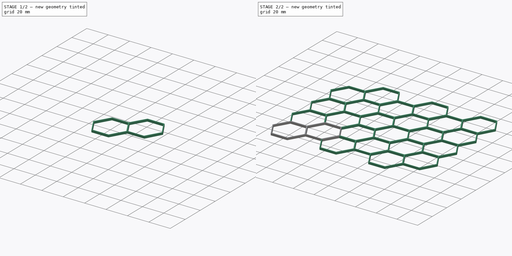
[diagram: build sequence overview — one tinted view per stage of 2, left to right]
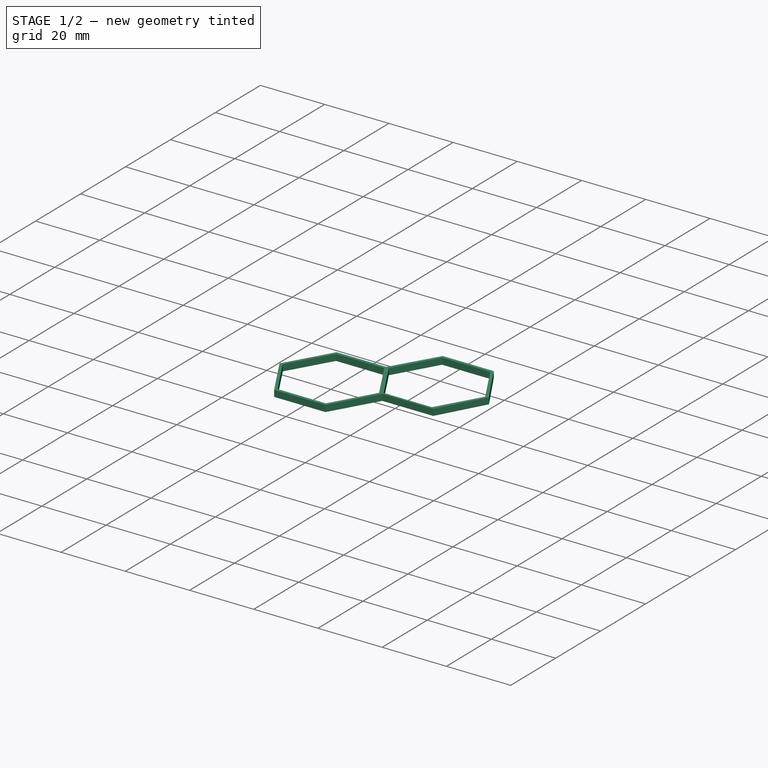
[diagram: stage 1 of 2 — iso view after this stage's code; geometry added in this stage tinted green]
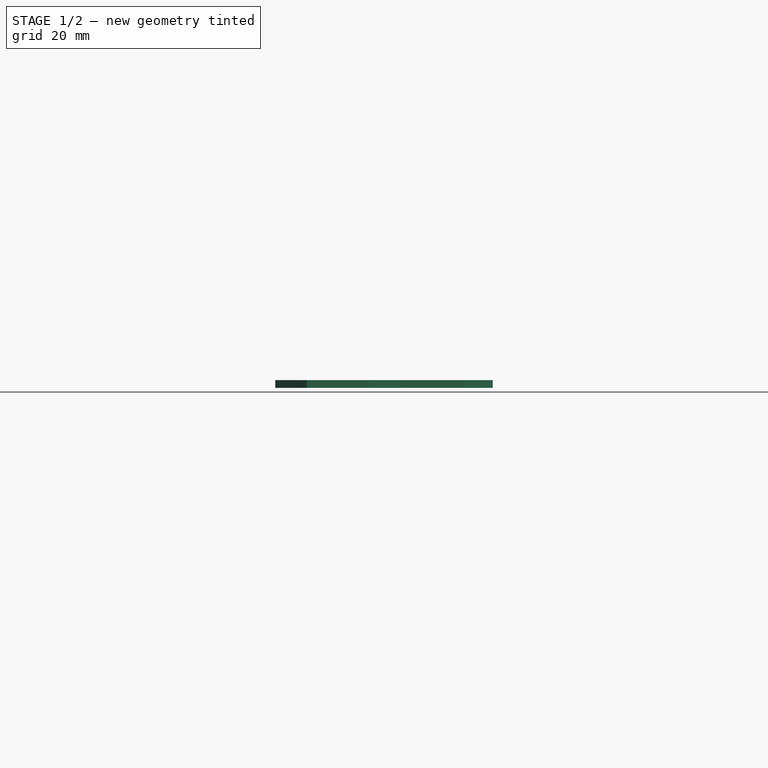
[diagram: stage 1 of 2 — front view after this stage's code; geometry added in this stage tinted green]
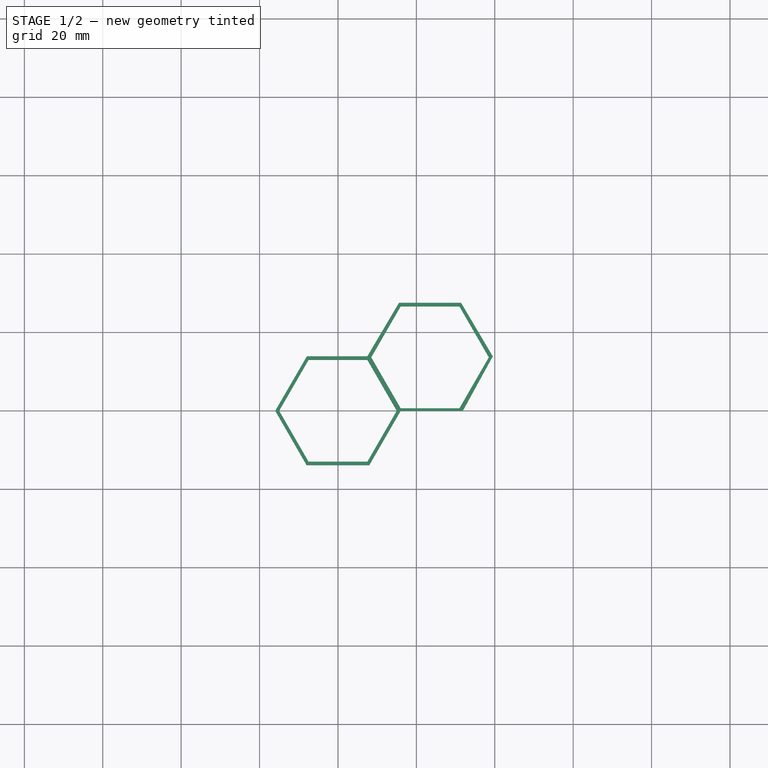
[diagram: stage 1 of 2 — top view after this stage's code; geometry added in this stage tinted green]
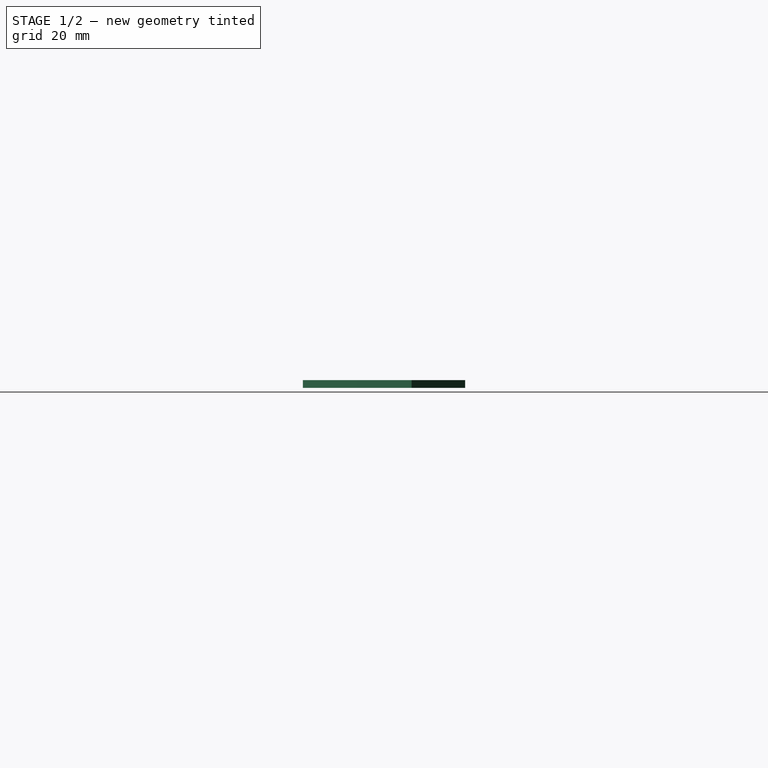
[diagram: stage 1 of 2 — right view after this stage's code; geometry added in this stage tinted green]
FCSTD DOCUMENT  (FreeCAD 0.20R27319 (Git))
Label: Hexa-Structure
License: All rights reserved
LicenseURL: http://en.wikipedia.org/wiki/All_rights_reserved
objects: PartDesign::LinearPattern×2, Sketcher::SketchObject×1, PartDesign::Pad×1, PartDesign::MultiTransform×1, PartDesign::Body×1
note: 7 computed .brp shape members not serialized (recipe doc carries the construction recipe); baked Part::Feature solids carry a one-line shape summary decoded from their .brp

FEATURE [Sketcher::SketchObject] Sketch
  FullyConstrained = true
  MapMode = 5
  Support = -> [XY_Plane]
  sketch-geometry (26):
    g0: LineSegment StartX=-15 StartY=0 StartZ=0 EndX=-7.5 EndY=-12.9904 EndZ=0
    g1: LineSegment StartX=-7.5 StartY=-12.9904 StartZ=0 EndX=7.5 EndY=-12.9904 EndZ=0
    g2: LineSegment StartX=7.5 StartY=-12.9904 StartZ=0 EndX=15 EndY=0 EndZ=0
    g3: LineSegment StartX=15 StartY=0 StartZ=0 EndX=7.5 EndY=12.9904 EndZ=0
    g4: LineSegment StartX=7.5 StartY=12.9904 StartZ=0 EndX=-7.5 EndY=12.9904 EndZ=0
    g5: LineSegment StartX=-7.5 StartY=12.9904 StartZ=0 EndX=-15 EndY=0 EndZ=0
    g6: Circle CenterX=0 CenterY=0 CenterZ=0 NormalX=0 NormalY=0 NormalZ=1 AngleXU=0 Radius=15
    g7: LineSegment StartX=7.48889 StartY=13.8941 StartZ=0 EndX=-7.93442 EndY=13.8941 EndZ=0
    g8: LineSegment StartX=-7.93442 StartY=13.8941 StartZ=0 EndX=-16 EndY=0 EndZ=0
    g9: LineSegment StartX=-16 StartY=0 StartZ=0 EndX=-8 EndY=-13.8564 EndZ=0
    g10: LineSegment StartX=-8 StartY=-13.8564 StartZ=0 EndX=8 EndY=-13.8564 EndZ=0
    g11: LineSegment StartX=8 StartY=-13.8564 StartZ=0 EndX=16 EndY=0 EndZ=0
    g12: Circle CenterX=0 CenterY=0 CenterZ=0 NormalX=0 NormalY=0 NormalZ=1 AngleXU=0 Radius=16
    g13: LineSegment StartX=8.48685 StartY=13.6388 StartZ=0 EndX=15.9869 EndY=0.648444 EndZ=0
    g14: LineSegment StartX=15.9869 StartY=0.648444 StartZ=0 EndX=30.9869 EndY=0.648444 EndZ=0
    g15: LineSegment StartX=30.9869 StartY=0.648444 StartZ=0 EndX=38.4869 EndY=13.6388 EndZ=0
    g16: LineSegment StartX=38.4869 StartY=13.6388 StartZ=0 EndX=30.9869 EndY=26.6292 EndZ=0
    g17: LineSegment StartX=30.9869 StartY=26.6292 StartZ=0 EndX=15.9869 EndY=26.6292 EndZ=0
    g18: LineSegment StartX=15.9869 StartY=26.6292 StartZ=0 EndX=8.48685 EndY=13.6388 EndZ=0
    g19: Circle CenterX=23.4869 CenterY=13.6388 CenterZ=0 NormalX=0 NormalY=0 NormalZ=1 AngleXU=0 Radius=15
    g20: LineSegment StartX=39.4848 StartY=13.8941 StartZ=0 EndX=31.4131 EndY=27.5376 EndZ=0
    g21: LineSegment StartX=31.4131 StartY=27.5376 StartZ=0 EndX=15.5607 EndY=27.5376 EndZ=0
    g22: LineSegment StartX=15.5607 StartY=27.5376 StartZ=0 EndX=7.48889 EndY=13.8941 EndZ=0
    g23: LineSegment StartX=16 StartY=0 StartZ=0 EndX=31.8524 EndY=0 EndZ=0
    g24: LineSegment StartX=31.8524 StartY=0 StartZ=0 EndX=39.4848 EndY=13.8941 EndZ=0
    g25: Circle CenterX=23.4869 CenterY=13.6388 CenterZ=0 NormalX=0 NormalY=0 NormalZ=1 AngleXU=0 Radius=16
  constraints (64):
    c: Coincident(g0,g1)
    c: Coincident(g1,g2)
    c: Coincident(g2,g3)
    c: Coincident(g3,g4)
    c: Coincident(g4,g5)
    c: Coincident(g5,g0)
    c: Equal(g0, g1-g5) x5
    c: PointOnObject(g0,g6)
    c: PointOnObject(g1,g6)
    c: PointOnObject(g2,g6)
    c: PointOnObject(g3,g6)
    c: PointOnObject(g4,g6)
    c: PointOnObject(g5,g6)
    c: Coincident(g-1,g6)
    c: Horizontal(g4)
    c: Coincident(g7,g8)
    c: Coincident(g8,g9)
    c: Coincident(g9,g10)
    c: Coincident(g10,g11)
    c: PointOnObject(g7,g12)
    c: PointOnObject(g8,g12)
    c: PointOnObject(g9,g12)
    c: PointOnObject(g10,g12)
    c: PointOnObject(g11,g12)
    c: Coincident(g12,g6)
    c: PointOnObject(g11,g-1)
    c: Diameter(g6) = 30
    c: Diameter(g12) = 32
    c: Coincident(g13,g14)
    c: Coincident(g14,g15)
    c: Coincident(g15,g16)
    c: Coincident(g16,g17)
    c: Coincident(g17,g18)
    c: Coincident(g18,g13)
    c: Equal(g13, g14-g18) x5
    c: PointOnObject(g13,g19)
    c: PointOnObject(g14,g19)
    c: PointOnObject(g15,g19)
    c: PointOnObject(g16,g19)
    c: PointOnObject(g17,g19)
    c: PointOnObject(g18,g19)
    c: Horizontal(g17)
    c: Coincident(g20,g21)
    c: Coincident(g21,g22)
    c: Coincident(g23,g24)
    c: Coincident(g24,g20)
    c: Equal(g20, g21-g24) x4
    c: PointOnObject(g20,g25)
    c: PointOnObject(g21,g25)
    c: PointOnObject(g22,g25)
    c: PointOnObject(g23,g25)
    c: PointOnObject(g24,g25)
    c: Coincident(g25,g19)
    c: Equal(g6,g19) = 30
    c: Equal(g12,g25) = 32
    c: PointOnObject(g13,g12)
    c: Coincident(g7,g22)
    c: Horizontal(g7)
    c: Horizontal(g21)
    c: Horizontal(g23)
    c: Coincident(g11,g23)
    c: PointOnObject(g8,g-1)
    c: Horizontal(g10)
    c: Equal(g10,g9)
FEATURE [PartDesign::Pad] Pad
  Direction = (0,0,1)
  Length = 2
  Length2 = 10
  Profile = -> Sketch
  ReferenceAxis = -> Sketch [N_Axis]
  Refine = true
  Type = 0
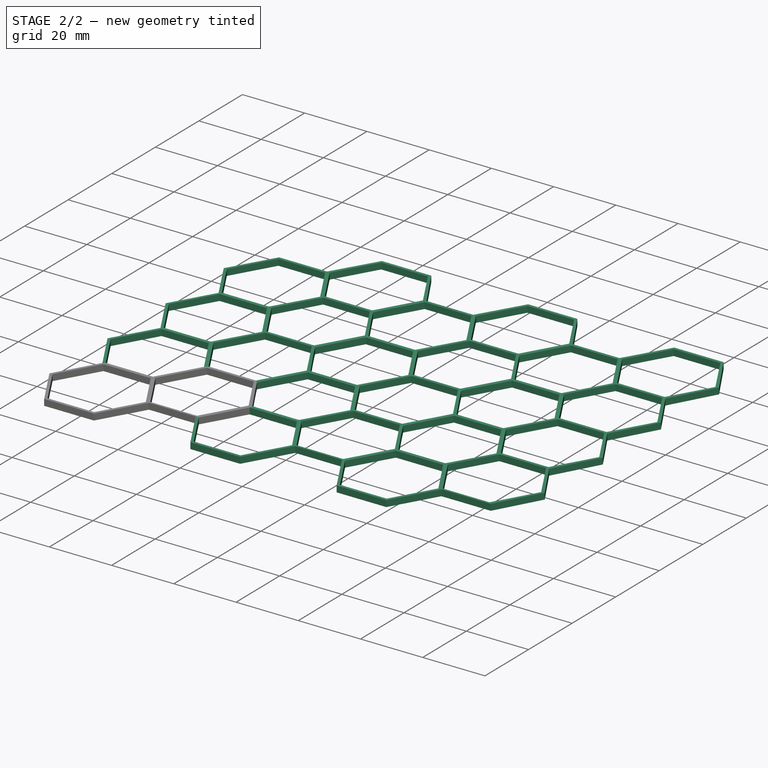
[diagram: stage 2 of 2 — iso view after this stage's code; geometry added in this stage tinted green]
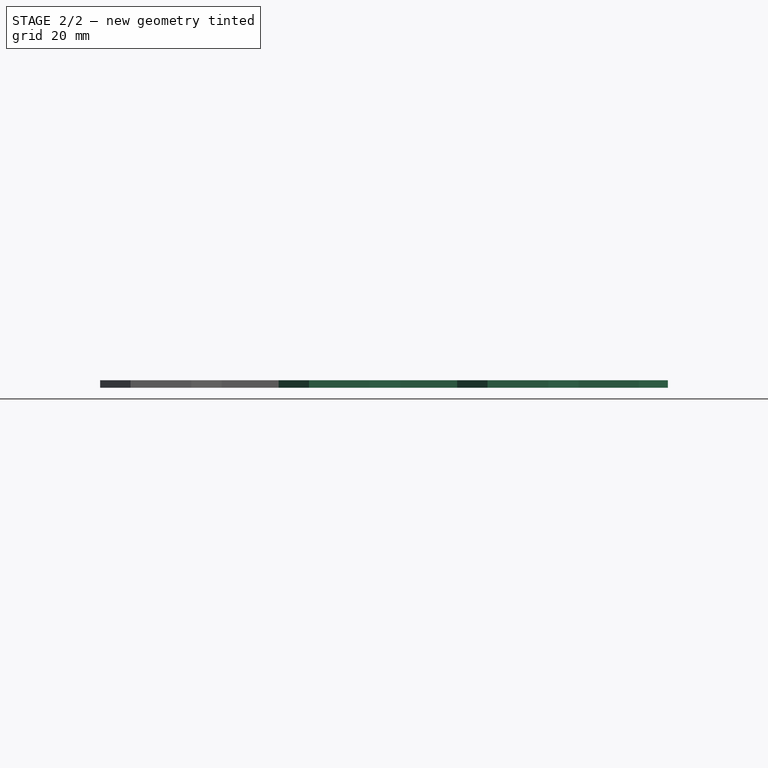
[diagram: stage 2 of 2 — front view after this stage's code; geometry added in this stage tinted green]
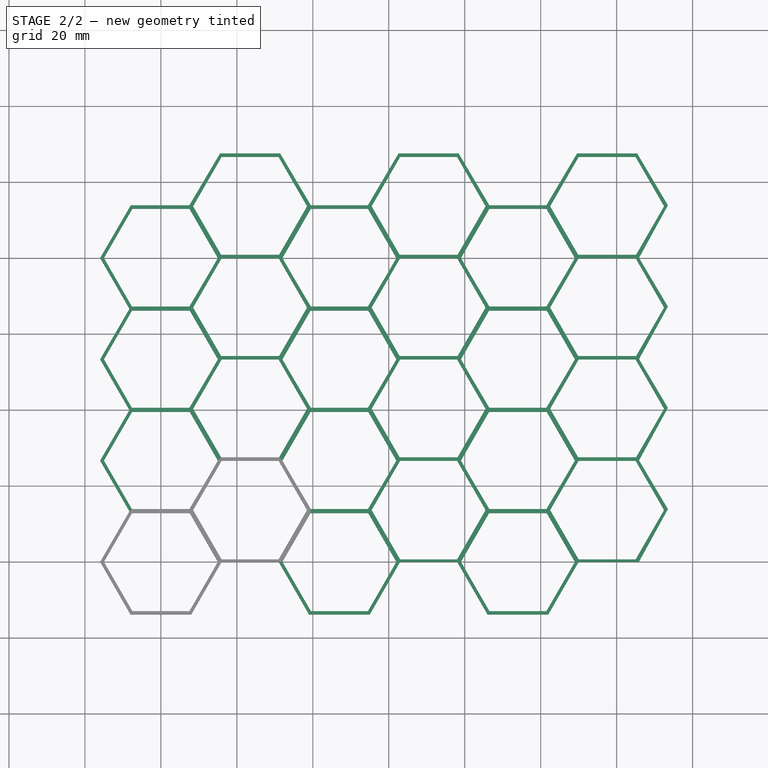
[diagram: stage 2 of 2 — top view after this stage's code; geometry added in this stage tinted green]
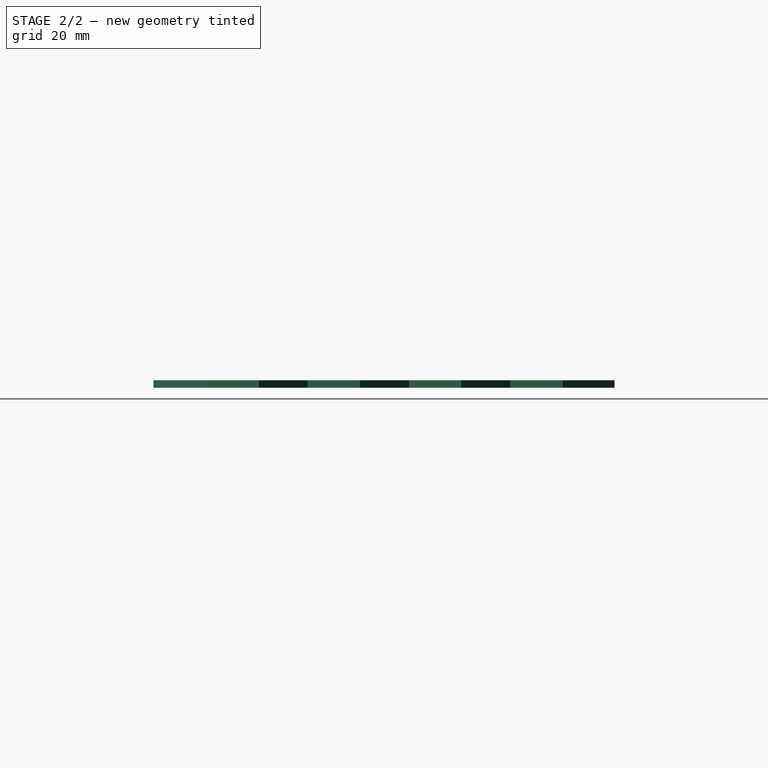
[diagram: stage 2 of 2 — right view after this stage's code; geometry added in this stage tinted green]
FEATURE [PartDesign::LinearPattern] LinearPattern
  Direction = -> Sketch [H_Axis]
  Length = 94
  Occurrences = 3
  Overlap = 0
  Refine = true
FEATURE [PartDesign::LinearPattern] LinearPattern001
  Direction = -> Sketch [V_Axis]
  Length = 80
  Occurrences = 4
  Overlap = 0
  Refine = true
FEATURE [PartDesign::MultiTransform] MultiTransform
  BaseFeature = -> Pad
  Originals = -> [Pad]
  Overlap = 0
  Refine = true
  Transformations = -> [LinearPattern,LinearPattern001]
FEATURE [PartDesign::Body] Body
  Group = -> [Sketch,Pad,MultiTransform,LinearPattern,LinearPattern001]
  Origin = -> Origin
  Tip = -> MultiTransform
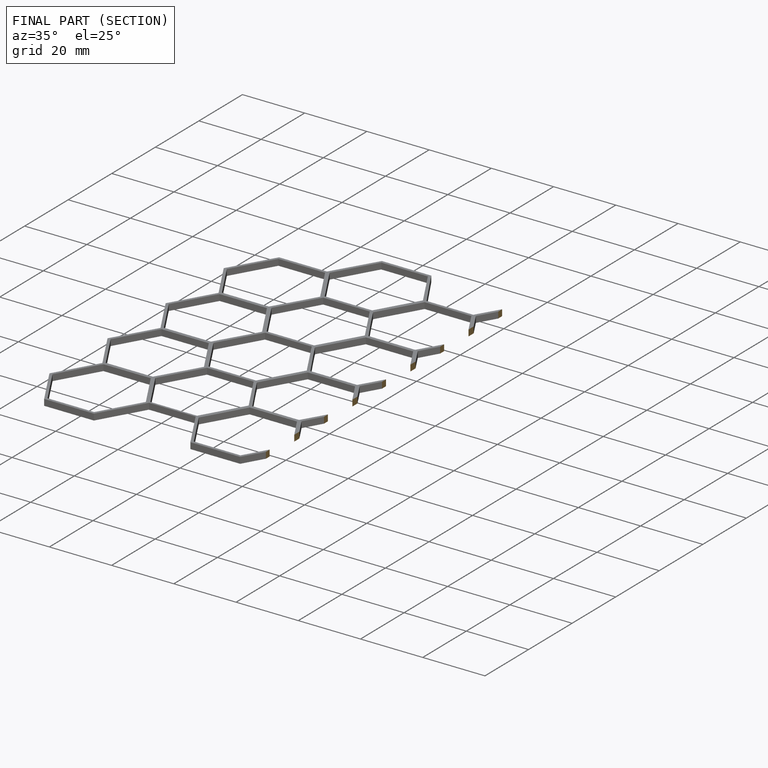
[diagram: finished part — half-section view (interior)]
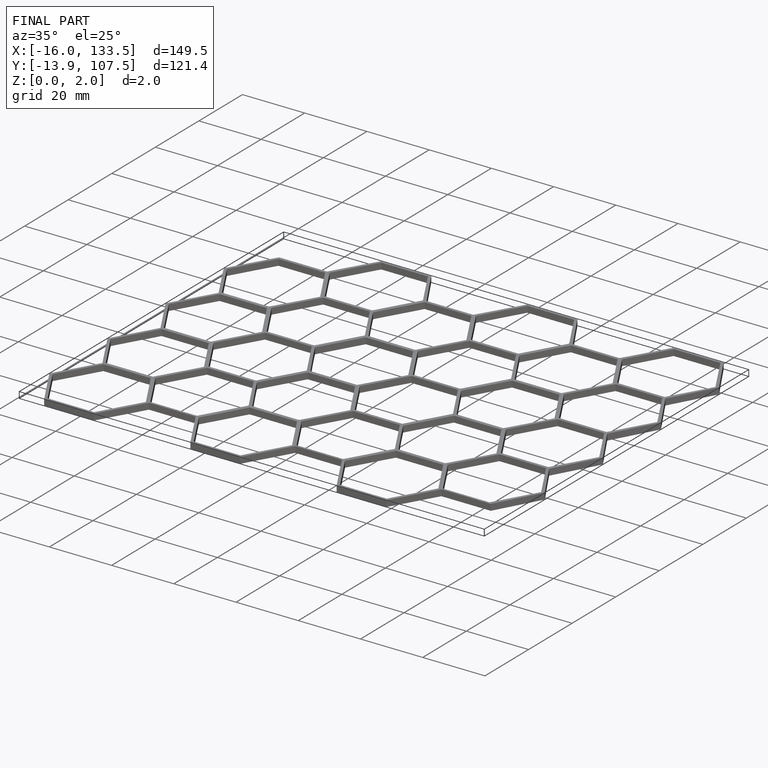
[diagram: finished part — iso view with bounding-box wireframe]
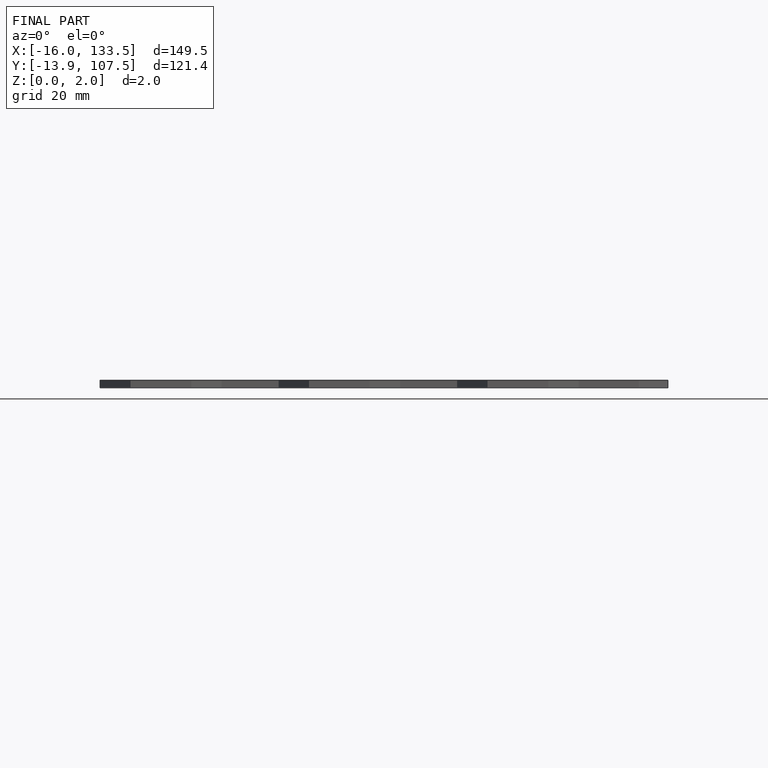
[diagram: finished part — front view with bounding-box wireframe]
